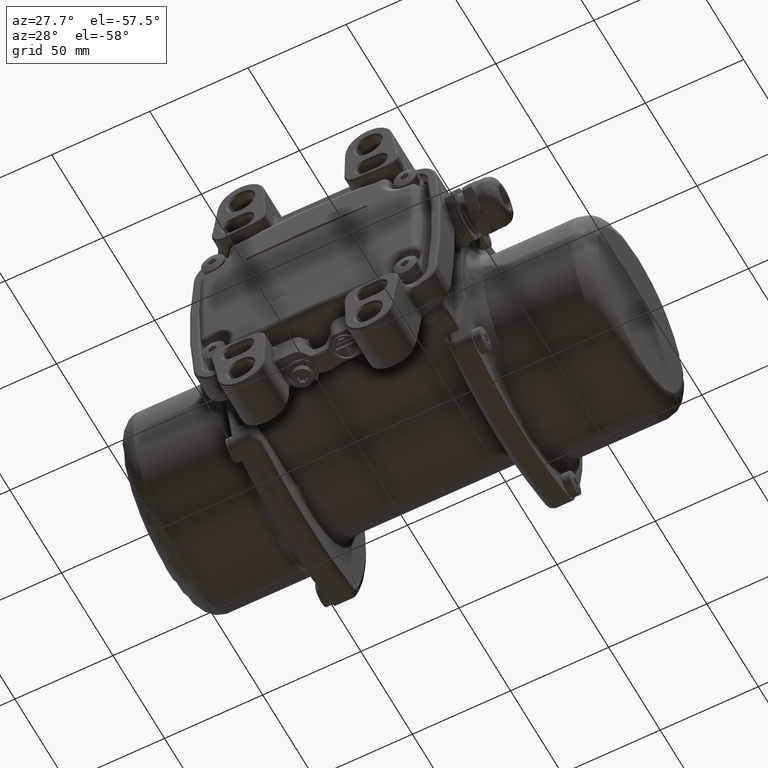
[diagram: clean part render]
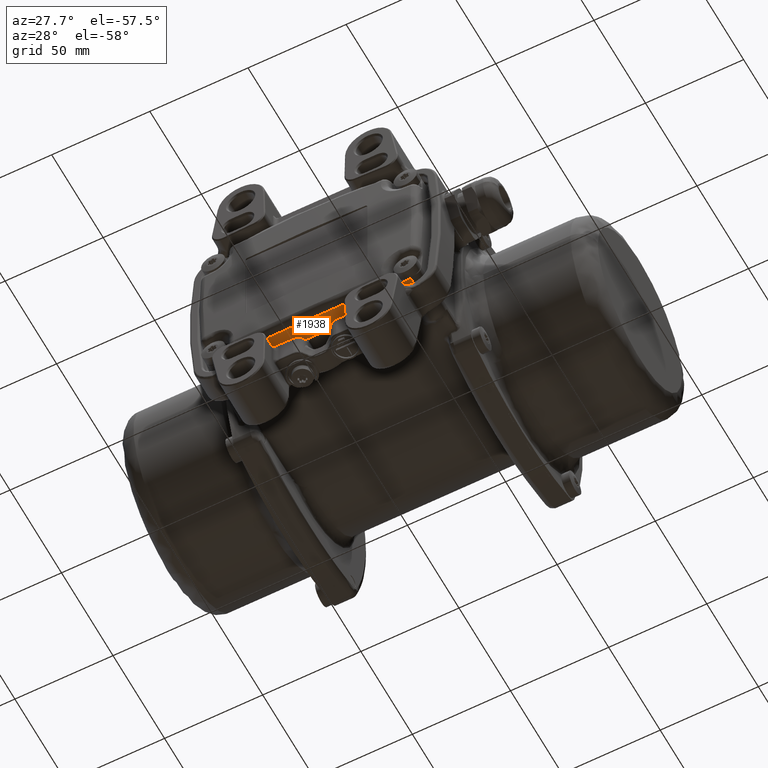
[diagram: same view with one face highlighted and labeled with its STEP entity id]
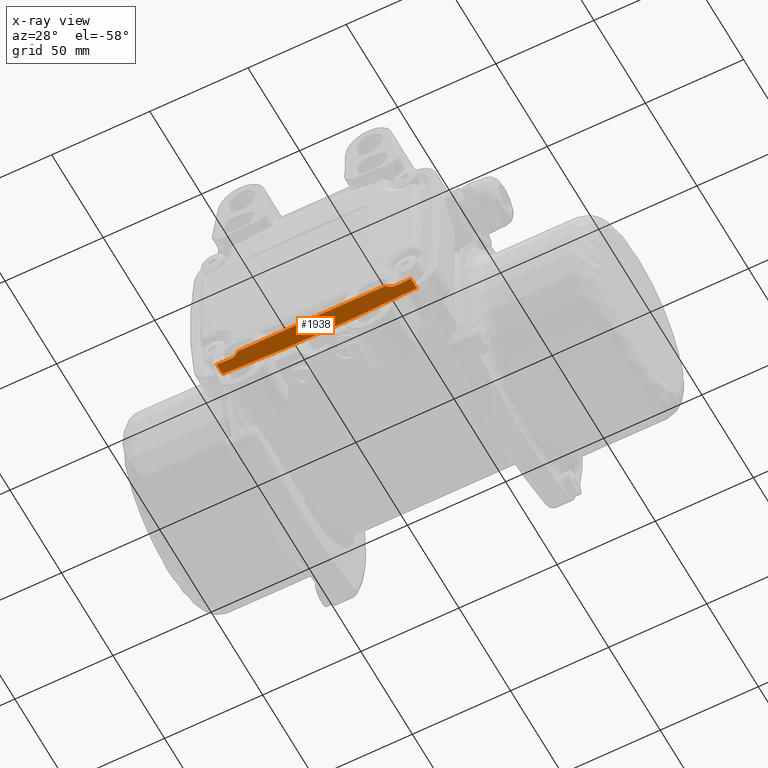
[diagram: x-ray of the same camera — body ghosted, the highlighted face saturated]
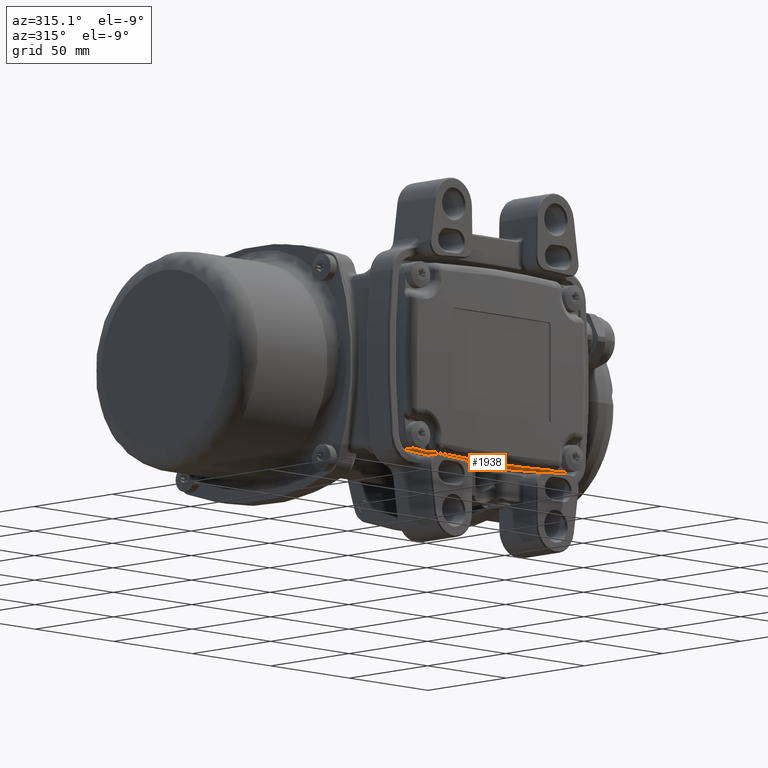
[diagram: same view with one face highlighted and labeled with its STEP entity id]
A machine part, auxiliary view. The second image highlights one B-rep face of the part: STEP entity #1938.
The next image is the same camera in x-ray: the body ghosted, the highlighted face saturated — about 0% of this face is hidden behind the body in this view.
A second angle (auxiliary view) of the same face is appended — the face is thin or edge-on in the first view.
In plain terms, the highlighted conical surface has half-angle 1 deg.
Its self-contained STEP definition (entity closure, byte-faithful):
#766 = CARTESIAN_POINT ( 'NONE',  ( 38.98559562991300000, 7.936965209102368100, -43.12373556170614800 ) ) ;
#804 = EDGE_CURVE ( 'NONE', #45109, #22254, #107309, .T. ) ;
#1305 = VERTEX_POINT ( 'NONE', #132010 ) ;
#1938 = ADVANCED_FACE ( 'NONE', ( #63418 ), #28349, .T. ) ;
#3119 = CARTESIAN_POINT ( 'NONE',  ( -39.53413707632952900, 8.275461403774683000, -43.09410227409370700 ) ) ;
#3312 = CARTESIAN_POINT ( 'NONE',  ( 37.73969312295830000, 6.777537745583379600, -43.18233061923890400 ) ) ;
#5557 = B_SPLINE_CURVE_WITH_KNOTS ( 'NONE', 3,
 ( #15170, #40940, #133493, #122633, #74995, #3312 ),
 .UNSPECIFIED., .F., .F.,
 ( 4, 2, 4 ),
 ( 0.0000000000000000000, 0.5000000000000004400, 1.000000000000000000 ),
 .UNSPECIFIED. ) ;
#11610 = CARTESIAN_POINT ( 'NONE',  ( 40.01129100401377800, 8.525231764330932500, -43.06715781555558900 ) ) ;
#13509 = ORIENTED_EDGE ( 'NONE', *, *, #61332, .T. ) ;
#13965 = CARTESIAN_POINT ( 'NONE',  ( -39.60199382649394600, 8.313396515830337600, -43.09033240902739700 ) ) ;
#15170 = CARTESIAN_POINT ( 'NONE',  ( -37.73969312295649600, 6.777537745626300000, -43.18233061923970000 ) ) ;
#22254 = VERTEX_POINT ( 'NONE', #109501 ) ;
#22758 = CARTESIAN_POINT ( 'NONE',  ( -37.93833792349865800, 7.179157765032294400, -43.17698213309554200 ) ) ;
#23891 = DIRECTION ( 'NONE',  ( -0.001084897771168982200, -0.9998476951563912700, 0.01741865342896050500 ) ) ;
#24005 = CARTESIAN_POINT ( 'NONE',  ( 39.71195667745189400, 8.373168861445394700, -43.08417968970230300 ) ) ;
#24262 = ORIENTED_EDGE ( 'NONE', *, *, #804, .T. ) ;
#24485 = CARTESIAN_POINT ( 'NONE',  ( -6.909761996917519000E-015, 14.79650951870973900, 562.7500000000000000 ) ) ;
#25336 = CARTESIAN_POINT ( 'NONE',  ( -41.89629932520404800, 8.991273796780511400, -42.94785665526514900 ) ) ;
#25543 = CARTESIAN_POINT ( 'NONE',  ( 39.68119679179678600, 8.356648925321183100, -43.08590602974529600 ) ) ;
#27456 = CARTESIAN_POINT ( 'NONE',  ( -49.48974335576820500, 15.00000000000000000, -42.47997926621274400 ) ) ;
#27709 = AXIS2_PLACEMENT_3D ( 'NONE', #79208, #128394, #93195 ) ;
#28349 = CONICAL_SURFACE ( 'NONE', #59148, 607.2464480604370500, 0.01745329251994283800 ) ;
#28578 = VERTEX_POINT ( 'NONE', #91835 ) ;
#31391 = ORIENTED_EDGE ( 'NONE', *, *, #126469, .T. ) ;
#34578 = CARTESIAN_POINT ( 'NONE',  ( -39.66304228951133100, 8.346858274777963200, -43.08692358263178300 ) ) ;
#36338 = CARTESIAN_POINT ( 'NONE',  ( 41.89641630436855000, 8.991273796780710400, -42.94784856377054900 ) ) ;
#36850 = CARTESIAN_POINT ( 'NONE',  ( 39.84071314782795500, 8.440527724344024200, -43.07690760681335700 ) ) ;
#40940 = CARTESIAN_POINT ( 'NONE',  ( -25.15988623091058700, 6.225398770456129300, -43.95619978457735800 ) ) ;
#44487 = DIRECTION ( 'NONE',  ( 1.000000000000000000, -3.485760785039693700E-016, 0.0000000000000000000 ) ) ;
#45109 = VERTEX_POINT ( 'NONE', #136211 ) ;
#45686 = VERTEX_POINT ( 'NONE', #113162 ) ;
#46643 = VERTEX_POINT ( 'NONE', #68148 ) ;
#48195 = DIRECTION ( 'NONE',  ( 1.431610304605631800E-016, -1.000000000000000000, -8.051019252716869300E-017 ) ) ;
#48325 = EDGE_CURVE ( 'NONE', #28578, #98051, #112890, .T. ) ;
#49560 = CARTESIAN_POINT ( 'NONE',  ( -38.46095333793733300, 7.570872772842204100, -43.15085897753559900 ) ) ;
#50583 = CARTESIAN_POINT ( 'NONE',  ( -38.67805567859611700, 7.726687708253370700, -43.13975763290188300 ) ) ;
#53612 = VERTEX_POINT ( 'NONE', #152114 ) ;
#59082 = CARTESIAN_POINT ( 'NONE',  ( 38.71902148742937300, 7.754217927980706200, -43.13762280955449300 ) ) ;
#59148 = AXIS2_PLACEMENT_3D ( 'NONE', #94929, #84016, #141494 ) ;
#59514 = VERTEX_POINT ( 'NONE', #139957 ) ;
#59595 = CARTESIAN_POINT ( 'NONE',  ( 38.75763504172834900, 7.781209349012827100, -43.13562661476159100 ) ) ;
#60093 = CARTESIAN_POINT ( 'NONE',  ( 39.75495388843647500, 8.395986656974312000, -43.08175952083450300 ) ) ;
#61032 = ORIENTED_EDGE ( 'NONE', *, *, #67734, .T. ) ;
#61332 = EDGE_CURVE ( 'NONE', #46643, #28578, #96597, .T. ) ;
#62441 = CARTESIAN_POINT ( 'NONE',  ( -38.57543000114934300, 7.653678898201837600, -43.14502464929985600 ) ) ;
#63418 = FACE_OUTER_BOUND ( 'NONE', #74314, .T. ) ;
#66843 = VERTEX_POINT ( 'NONE', #72312 ) ;
#67734 = EDGE_CURVE ( 'NONE', #59514, #1305, #151217, .T. ) ;
#68148 = CARTESIAN_POINT ( 'NONE',  ( -37.73969312295649600, 6.777537745626300000, -43.18233061923970000 ) ) ;
#68844 = VECTOR ( 'NONE', #128627, 1000.000000000000000 ) ;
#70430 = CARTESIAN_POINT ( 'NONE',  ( 38.46540401803157700, 7.575347089437829400, -43.15068635776765400 ) ) ;
#70939 = CIRCLE ( 'NONE', #144207, 607.2464480604370500 ) ;
#71435 = CARTESIAN_POINT ( 'NONE',  ( 39.69350410549063200, 8.363272535823554700, -43.08521566002253400 ) ) ;
#72268 = CARTESIAN_POINT ( 'NONE',  ( -38.85739882953701900, 7.853006847336823500, -43.13051752040686900 ) ) ;
#72312 = CARTESIAN_POINT ( 'NONE',  ( 49.48945387931279800, 14.79650951871143900, -42.47643914219764800 ) ) ;
#73800 = CARTESIAN_POINT ( 'NONE',  ( -38.67358665681416600, 7.723535936471146900, -43.13998777442472500 ) ) ;
#74314 = EDGE_LOOP ( 'NONE', ( #133597, #79227, #61032, #106705, #136132, #122106, #24262, #31391, #91960, #13509 ) ) ;
#74995 = CARTESIAN_POINT ( 'NONE',  ( 25.15988623102871800, 6.225398767716049200, -43.95619978452194200 ) ) ;
#75149 = VECTOR ( 'NONE', #23891, 1000.000000000000000 ) ;
#77911 = EDGE_CURVE ( 'NONE', #1305, #66843, #70939, .T. ) ;
#78854 = EDGE_CURVE ( 'NONE', #66843, #45686, #83677, .T. ) ;
#79208 = CARTESIAN_POINT ( 'NONE',  ( -6.078678468899609900E-015, 8.991273796780149000, 562.7500000000000000 ) ) ;
#79227 = ORIENTED_EDGE ( 'NONE', *, *, #102764, .T. ) ;
#80071 = CARTESIAN_POINT ( 'NONE',  ( -6.078678468899609900E-015, 8.991273796780149000, 562.7500000000000000 ) ) ;
#82315 = CARTESIAN_POINT ( 'NONE',  ( 38.15198670885138900, 7.341762753294440300, -43.16651908182207400 ) ) ;
#82561 = LINE ( 'NONE', #151511, #75149 ) ;
#83677 = LINE ( 'NONE', #147432, #139227 ) ;
#84016 = DIRECTION ( 'NONE',  ( -1.431610304605631800E-016, 1.000000000000000000, 8.053251052869739200E-017 ) ) ;
#84143 = CARTESIAN_POINT ( 'NONE',  ( -38.65532095831136400, 7.710629341512520400, -43.14092771840593300 ) ) ;
#84328 = CARTESIAN_POINT ( 'NONE',  ( 39.67362534531439900, 8.352557269078438700, -43.08633031297421900 ) ) ;
#85170 = CARTESIAN_POINT ( 'NONE',  ( -39.65006362086640500, 8.339792857719841000, -43.08764952928397200 ) ) ;
#85682 = CARTESIAN_POINT ( 'NONE',  ( -41.20006920521365100, 8.991004893067128000, -42.99601039299051300 ) ) ;
#91835 = CARTESIAN_POINT ( 'NONE',  ( -37.73996385179074800, 7.026178609762400400, -43.18666215173735200 ) ) ;
#91960 = ORIENTED_EDGE ( 'NONE', *, *, #141549, .F. ) ;
#93195 = DIRECTION ( 'NONE',  ( 1.000000000000000000, -3.485760785039693700E-016, 0.0000000000000000000 ) ) ;
#93904 = AXIS2_PLACEMENT_3D ( 'NONE', #80071, #139072, #44487 ) ;
#94732 = CARTESIAN_POINT ( 'NONE',  ( 38.69964826810053900, 7.740611634141374400, -43.13862242150319300 ) ) ;
#94929 = CARTESIAN_POINT ( 'NONE',  ( -6.909761996917219300E-015, 14.79650951870760000, 562.7500000000000000 ) ) ;
#95240 = CARTESIAN_POINT ( 'NONE',  ( 39.51706457450242000, 8.267712804164018400, -43.09509743954303200 ) ) ;
#96577 = CARTESIAN_POINT ( 'NONE',  ( -39.63567914145839000, 8.331937883418879300, -43.08845348649445100 ) ) ;
#96597 = LINE ( 'NONE', #116738, #68844 ) ;
#98051 = VERTEX_POINT ( 'NONE', #152841 ) ;
#102764 = EDGE_CURVE ( 'NONE', #98051, #59514, #120197, .T. ) ;
#106120 = CARTESIAN_POINT ( 'NONE',  ( 40.34868397027860000, 8.677127465294690400, -43.04747710004340200 ) ) ;
#106705 = ORIENTED_EDGE ( 'NONE', *, *, #77911, .T. ) ;
#107309 = B_SPLINE_CURVE_WITH_KNOTS ( 'NONE', 3,
 ( #36338, #141307, #141812, #106120, #11610, #36850, #60093, #24005, #71435, #25543, #84328, #95240, #129949, #766, #130447, #59595, #59082, #94732, #142822, #118557, #142318, #70430, #82315, #120082 ),
 .UNSPECIFIED., .F., .F.,
 ( 4, 1, 1, 1, 1, 1, 1, 2, 2, 1, 1, 1, 1, 1, 1, 2, 2, 4 ),
 ( 0.0000000000000000000, 0.2500000000001005900, 0.3750000000001530400, 0.4375000000001773600, 0.4687500000001879100, 0.4843750000001930100, 0.4921875000001937900, 0.4960937500001925100, 0.5000000000001911800, 0.6250000000001315600, 0.6875000000001017000, 0.7187500000000871500, 0.7343750000000781600, 0.7421875000000753800, 0.7460937500000740500, 0.7480468750000750500, 0.7500000000000760500, 1.000000000000000000 ),
 .UNSPECIFIED. ) ;
#107934 = CARTESIAN_POINT ( 'NONE',  ( -40.45769872555929700, 8.777312002600911700, -43.04242044788277600 ) ) ;
#108943 = CARTESIAN_POINT ( 'NONE',  ( -37.73996385179074800, 7.026178609762400400, -43.18666215173735200 ) ) ;
#109501 = CARTESIAN_POINT ( 'NONE',  ( 37.73996636302015200, 7.026178610270110700, -43.18666197250549700 ) ) ;
#112890 = B_SPLINE_CURVE_WITH_KNOTS ( 'NONE', 3,
 ( #108943, #22758, #144667, #49560, #62441, #133308, #84143, #144155, #73800, #132283, #50583, #72268, #119898, #121418, #3119, #13965, #96577, #85170, #120397, #34578, #107934, #85682, #25336 ),
 .UNSPECIFIED., .F., .F.,
 ( 4, 1, 1, 1, 1, 1, 1, 2, 2, 1, 1, 1, 1, 1, 2, 2, 4 ),
 ( 0.0000000000000000000, 0.1250000000000149000, 0.1875000000000242300, 0.2187500000000288100, 0.2343750000000332500, 0.2421875000000330800, 0.2460937500000332200, 0.2480468750000333100, 0.2500000000000333600, 0.3750000000000157100, 0.4375000000000071100, 0.4687500000000045000, 0.4843750000000007800, 0.4921875000000011100, 0.4960937499999987200, 0.4999999999999962800, 1.000000000000000000 ),
 .UNSPECIFIED. ) ;
#113162 = CARTESIAN_POINT ( 'NONE',  ( 49.48119561069239600, 8.991273803591807800, -42.37544545326304800 ) ) ;
#116738 = CARTESIAN_POINT ( 'NONE',  ( -37.74861500673419800, 15.00000000000000000, -43.32557661159165000 ) ) ;
#118557 = CARTESIAN_POINT ( 'NONE',  ( 38.68578336098755000, 7.730848092911008600, -43.13933704073083700 ) ) ;
#119898 = CARTESIAN_POINT ( 'NONE',  ( -39.11338502907725700, 8.023984178841193000, -43.11704955503564900 ) ) ;
#120082 = CARTESIAN_POINT ( 'NONE',  ( 37.73996636302015200, 7.026178610270110700, -43.18666197250549700 ) ) ;
#120197 = CIRCLE ( 'NONE', #93904, 607.1451172939869100 ) ;
#120397 = CARTESIAN_POINT ( 'NONE',  ( -39.65964169956778600, 8.345009212566230500, -43.08711384647971700 ) ) ;
#121418 = CARTESIAN_POINT ( 'NONE',  ( -39.39647908300310800, 8.196181672149156900, -43.10168952405143000 ) ) ;
#122106 = ORIENTED_EDGE ( 'NONE', *, *, #145308, .T. ) ;
#122633 = CARTESIAN_POINT ( 'NONE',  ( 12.57991557405001400, 5.950548909716046900, -44.34204124365425100 ) ) ;
#126469 = EDGE_CURVE ( 'NONE', #22254, #53612, #82561, .T. ) ;
#128394 = DIRECTION ( 'NONE',  ( -1.431610304605631800E-016, 1.000000000000000000, 8.051019252716869300E-017 ) ) ;
#128627 = DIRECTION ( 'NONE',  ( -0.001084897771168634200, 0.9998476951563912700, -0.01741865342896080400 ) ) ;
#129949 = CARTESIAN_POINT ( 'NONE',  ( 39.27962124589987500, 8.128125912946638100, -43.10811730043928900 ) ) ;
#130447 = CARTESIAN_POINT ( 'NONE',  ( 38.83433061451406600, 7.834307524490900400, -43.13164642864526900 ) ) ;
#132010 = CARTESIAN_POINT ( 'NONE',  ( -49.48945387931309600, 14.79650951871087900, -42.47643914219764800 ) ) ;
#132283 = CARTESIAN_POINT ( 'NONE',  ( -38.67720834067989000, 7.726090082219340800, -43.13980126721840200 ) ) ;
#133308 = CARTESIAN_POINT ( 'NONE',  ( -38.62925887722470000, 7.692136731905057100, -43.14226669664289200 ) ) ;
#133493 = CARTESIAN_POINT ( 'NONE',  ( -12.57991557405016900, 5.950548909716038000, -44.34204124365424300 ) ) ;
#133597 = ORIENTED_EDGE ( 'NONE', *, *, #48325, .T. ) ;
#134898 = DIRECTION ( 'NONE',  ( -0.001422338601106309900, 0.9998476951563911600, -0.01739435090355305100 ) ) ;
#136132 = ORIENTED_EDGE ( 'NONE', *, *, #78854, .T. ) ;
#136211 = CARTESIAN_POINT ( 'NONE',  ( 41.89641630436855000, 8.991273796780710400, -42.94784856377054900 ) ) ;
#139072 = DIRECTION ( 'NONE',  ( -1.431610304605631800E-016, 1.000000000000000000, 8.051019252716869300E-017 ) ) ;
#139227 = VECTOR ( 'NONE', #146408, 1000.000000000000100 ) ;
#139957 = CARTESIAN_POINT ( 'NONE',  ( -49.48119561068300200, 8.991273796780889800, -42.37544545314455700 ) ) ;
#141307 = CARTESIAN_POINT ( 'NONE',  ( 41.54809939387725800, 8.991134654444835000, -42.97193938021606400 ) ) ;
#141494 = DIRECTION ( 'NONE',  ( -1.269900140537174900E-030, -7.998771747861484200E-017, 1.000000000000000000 ) ) ;
#141549 = EDGE_CURVE ( 'NONE', #46643, #53612, #5557, .T. ) ;
#141812 = CARTESIAN_POINT ( 'NONE',  ( 41.00841819211537900, 8.910869351181927900, -43.00741264686562500 ) ) ;
#142318 = CARTESIAN_POINT ( 'NONE',  ( 38.68190908778215200, 7.728115872216601900, -43.13953660681451700 ) ) ;
#142793 = DIRECTION ( 'NONE',  ( 1.000000000000000000, -3.379481063471477100E-015, 1.243237665953327800E-014 ) ) ;
#142822 = CARTESIAN_POINT ( 'NONE',  ( 38.69133122218502100, 7.734756668926679300, -43.13905115000102300 ) ) ;
#144155 = CARTESIAN_POINT ( 'NONE',  ( -38.66813891046000900, 7.719691569505212800, -43.14026825241084900 ) ) ;
#144207 = AXIS2_PLACEMENT_3D ( 'NONE', #24485, #48195, #142793 ) ;
#144667 = CARTESIAN_POINT ( 'NONE',  ( -38.20472390040659100, 7.381698690310182400, -43.16378800901058800 ) ) ;
#145308 = EDGE_CURVE ( 'NONE', #45686, #45109, #148450, .T. ) ;
#146408 = DIRECTION ( 'NONE',  ( -0.001422338601106020000, -0.9998476951563911600, 0.01739435090355305100 ) ) ;
#147432 = CARTESIAN_POINT ( 'NONE',  ( 49.48974335576809800, 15.00000000000000000, -42.47997926621284400 ) ) ;
#147543 = VECTOR ( 'NONE', #134898, 1000.000000000000100 ) ;
#148450 = CIRCLE ( 'NONE', #27709, 607.1451172939869100 ) ;
#151217 = LINE ( 'NONE', #27456, #147543 ) ;
#151511 = CARTESIAN_POINT ( 'NONE',  ( 37.74067756032205500, 7.684806152728020500, -43.19813637543529700 ) ) ;
#152114 = CARTESIAN_POINT ( 'NONE',  ( 37.73969312295830000, 6.777537745583379600, -43.18233061923890400 ) ) ;
#152841 = CARTESIAN_POINT ( 'NONE',  ( -41.89629932520404800, 8.991273796780511400, -42.94785665526514900 ) ) ;